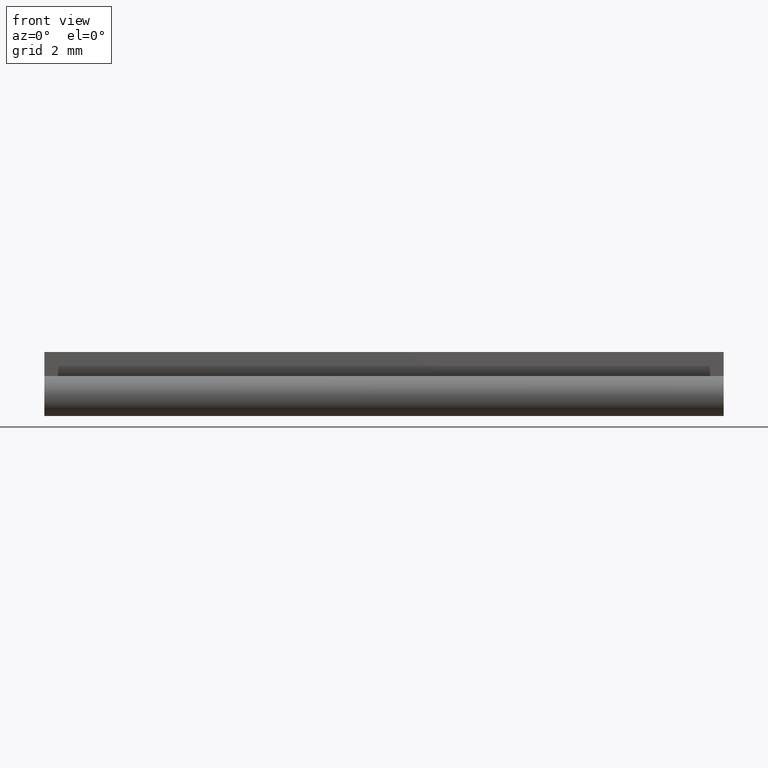
[diagram: clean part render]
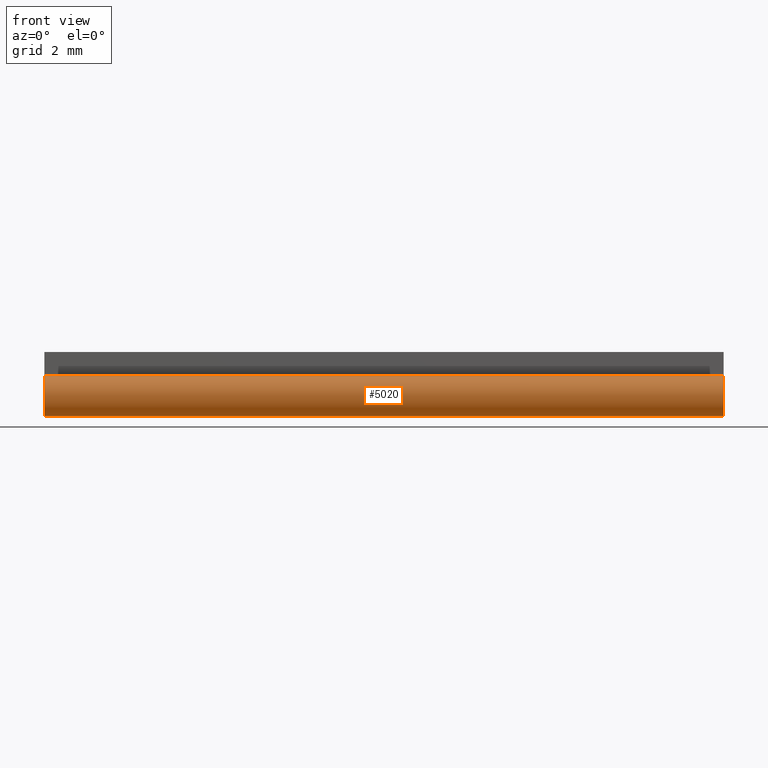
[diagram: same view with one face highlighted and labeled with its STEP entity id]
A machine part, front view. The second image highlights one B-rep face of the part: STEP entity #5020.
In plain terms, the highlighted cylindrical surface (edge-blend (fillet) strip) has radius 0.5 mm, axis along (-1, 0, 0).
Its self-contained STEP definition (entity closure, byte-faithful):
#1050=CARTESIAN_POINT('',(398.426447634406,992.724347545384,
-1.50000000000001));
#1060=VERTEX_POINT('',#1050);
#1090=CARTESIAN_POINT('',(381.426447634406,992.724347545384,
-1.50000000000002));
#1100=DIRECTION('',(1.,0.,0.));
#1110=VECTOR('',#1100,1.);
#1120=LINE('',#1090,#1110);
#1130=CARTESIAN_POINT('',(381.426447634406,992.724347545384,
-1.50000000000001));
#1140=VERTEX_POINT('',#1130);
#1150=EDGE_CURVE('',#1140,#1060,#1120,.T.);
#1420=CARTESIAN_POINT('',(381.426447634406,992.724347545384,
-0.500000000000021));
#1430=VERTEX_POINT('',#1420);
#1480=CARTESIAN_POINT('',(381.426447634406,992.724347545384,
-0.500000000000021));
#1490=DIRECTION('',(1.,0.,0.));
#1500=VECTOR('',#1490,1.);
#1510=LINE('',#1480,#1500);
#1520=CARTESIAN_POINT('',(398.426447634406,992.724347545384,
-0.500000000000021));
#1530=VERTEX_POINT('',#1520);
#1540=EDGE_CURVE('',#1430,#1530,#1510,.T.);
#2320=CARTESIAN_POINT('',(398.426447634406,992.724347545384,
-1.00000000000002));
#2330=DIRECTION('',(1.,0.,0.));
#2340=DIRECTION('',(0.,1.,0.));
#2350=AXIS2_PLACEMENT_3D('',#2320,#2330,#2340);
#2360=CIRCLE('',#2350,0.5);
#2370=EDGE_CURVE('',#1060,#1530,#2360,.T.);
#3600=CARTESIAN_POINT('',(381.426447634406,992.724347545384,
-1.00000000000002));
#3610=DIRECTION('',(1.,0.,0.));
#3620=DIRECTION('',(0.,1.,0.));
#3630=AXIS2_PLACEMENT_3D('',#3600,#3610,#3620);
#3640=CIRCLE('',#3630,0.5);
#3650=EDGE_CURVE('',#1140,#1430,#3640,.T.);
#4910=CARTESIAN_POINT('',(381.426447634406,992.724347545384,
-1.00000000000002));
#4920=DIRECTION('',(1.,0.,0.));
#4930=DIRECTION('',(0.,1.,0.));
#4940=AXIS2_PLACEMENT_3D('',#4910,#4920,#4930);
#4950=CYLINDRICAL_SURFACE('',#4940,0.5);
#4960=ORIENTED_EDGE('',*,*,#1540,.T.);
#4970=ORIENTED_EDGE('',*,*,#3650,.T.);
#4980=ORIENTED_EDGE('',*,*,#1150,.F.);
#4990=ORIENTED_EDGE('',*,*,#2370,.F.);
#5000=EDGE_LOOP('',(#4990,#4980,#4970,#4960));
#5010=FACE_OUTER_BOUND('',#5000,.T.);
#5020=ADVANCED_FACE('',(#5010),#4950,.T.);